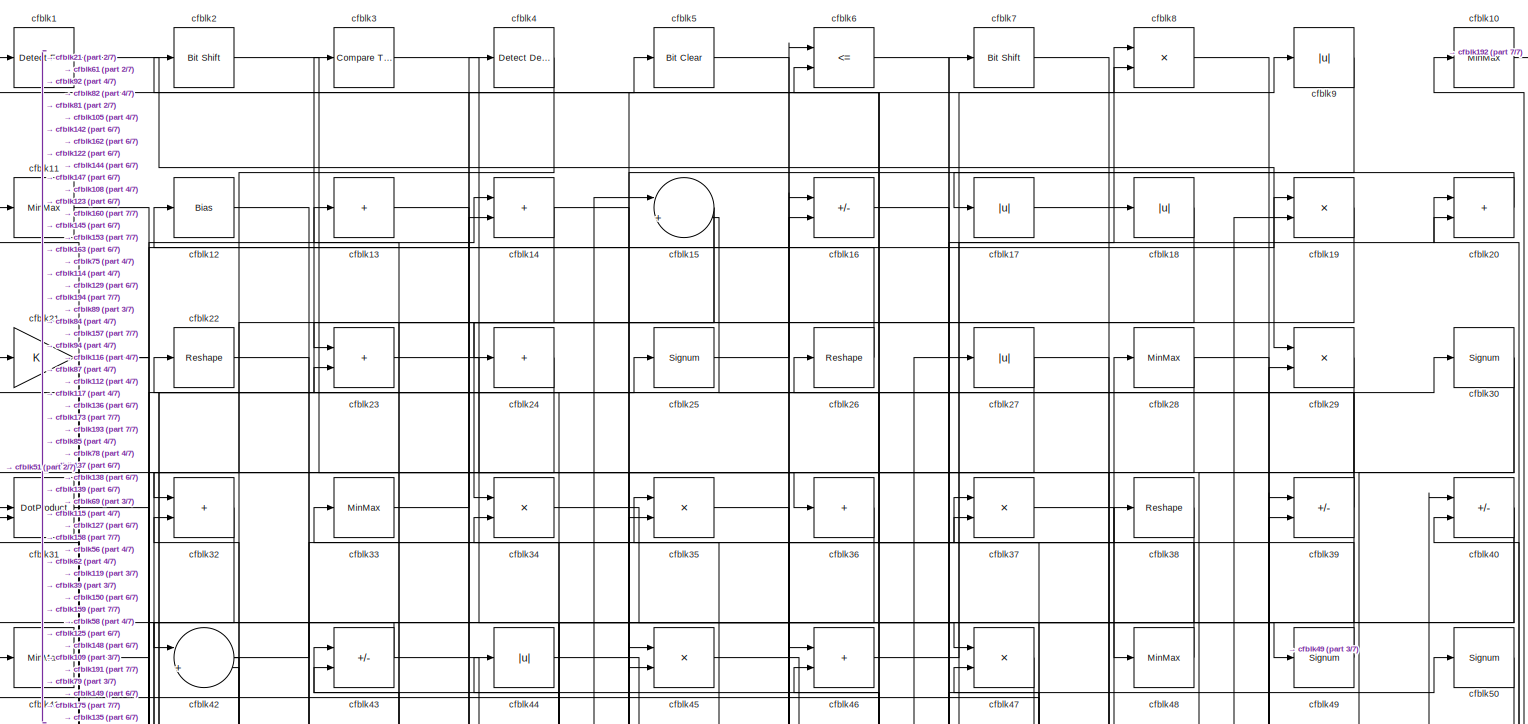
[diagram: root canvas - part 1/7, full width, top band]
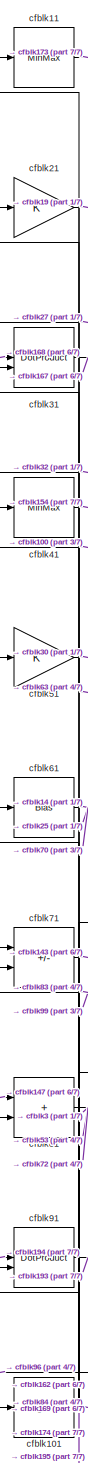
[diagram: root canvas - part 2/7, top left region]
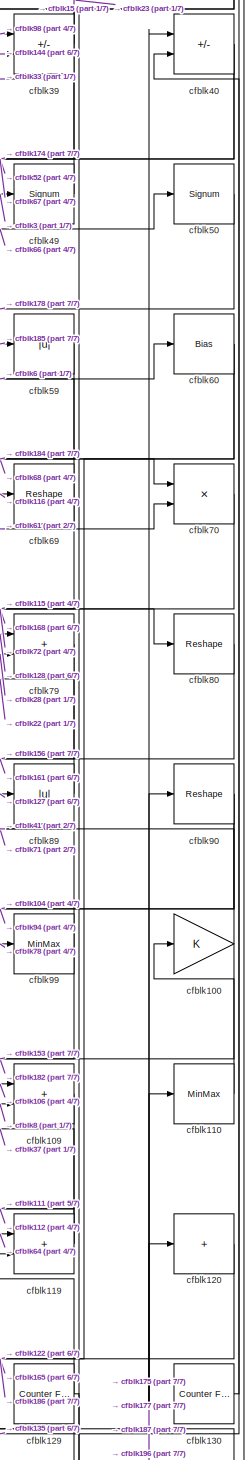
[diagram: root canvas - part 3/7, middle right region]
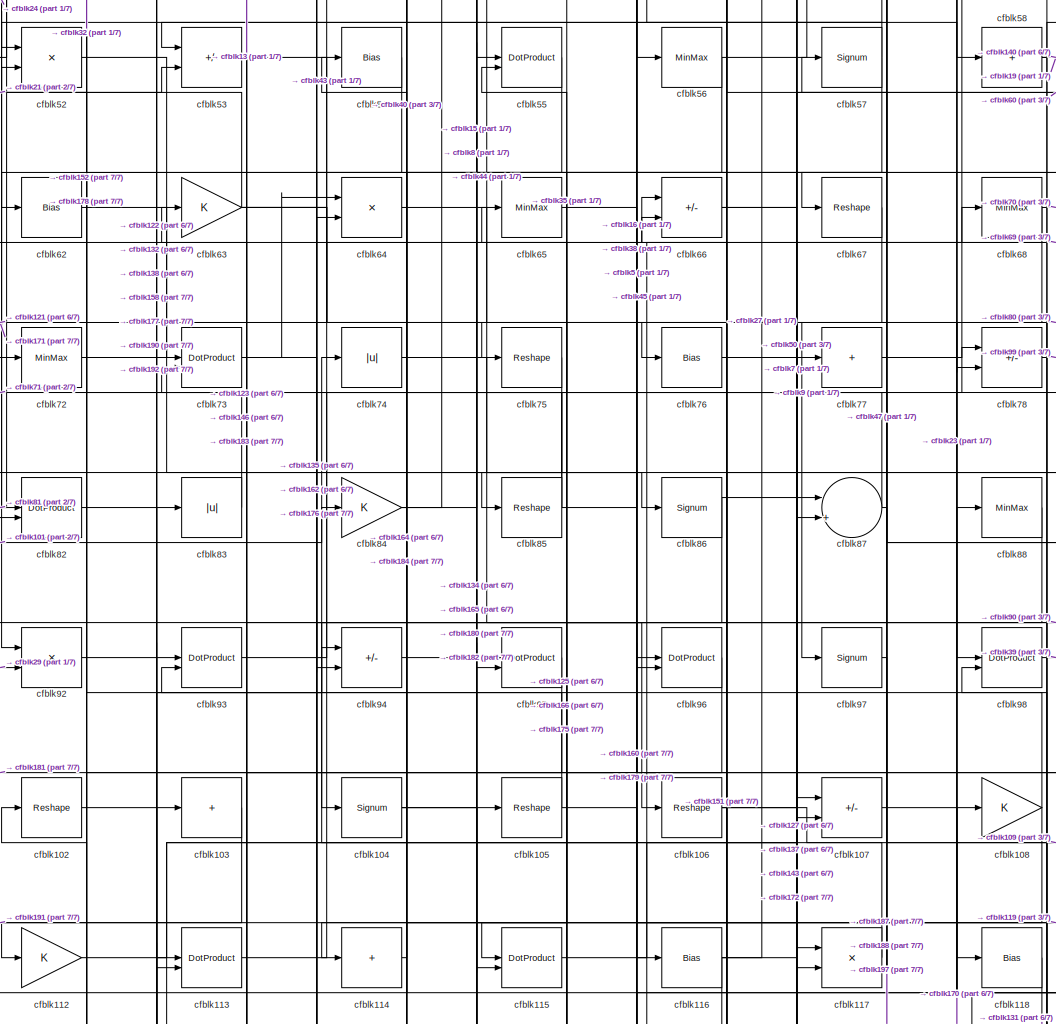
[diagram: root canvas - part 4/7, central region]
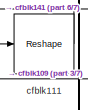
[diagram: root canvas - part 5/7, middle left region]
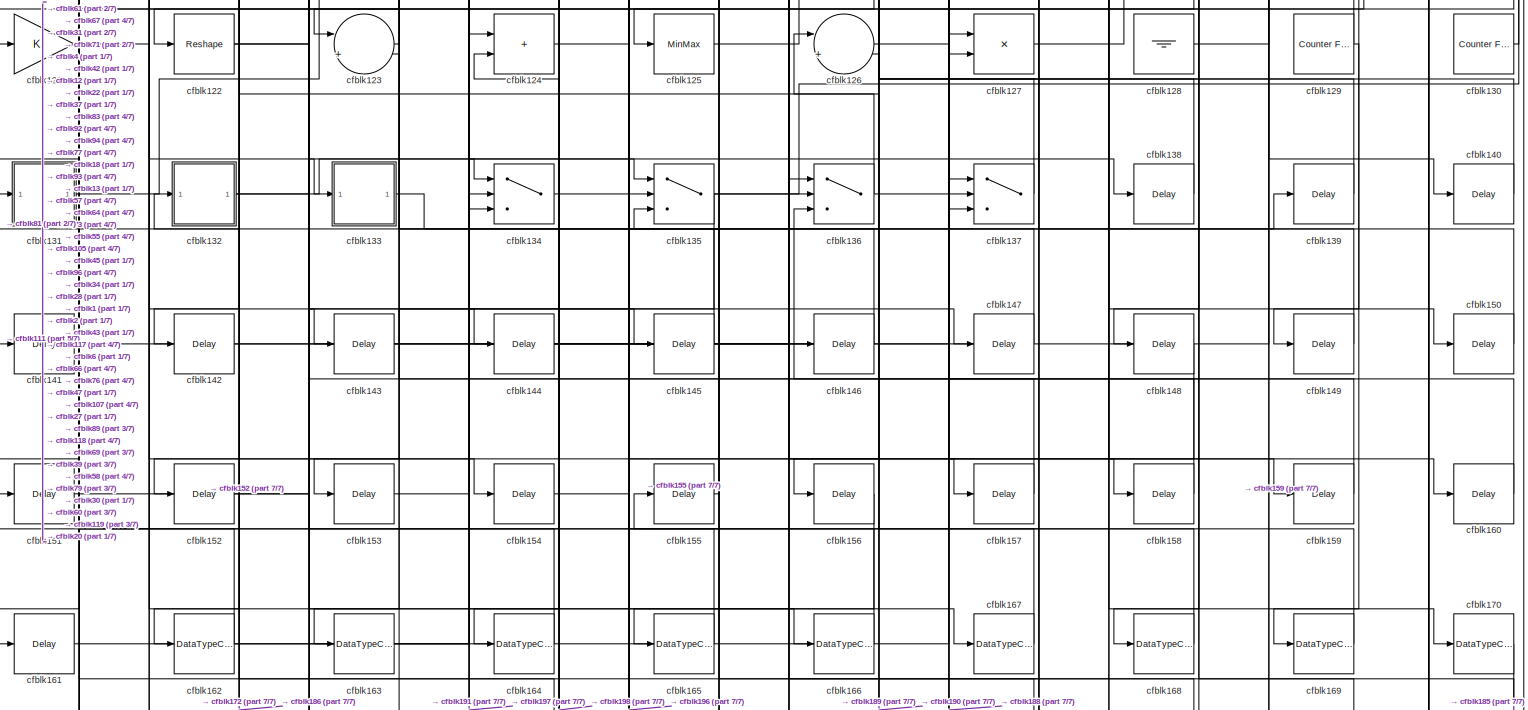
[diagram: root canvas - part 6/7, full width, bottom band]
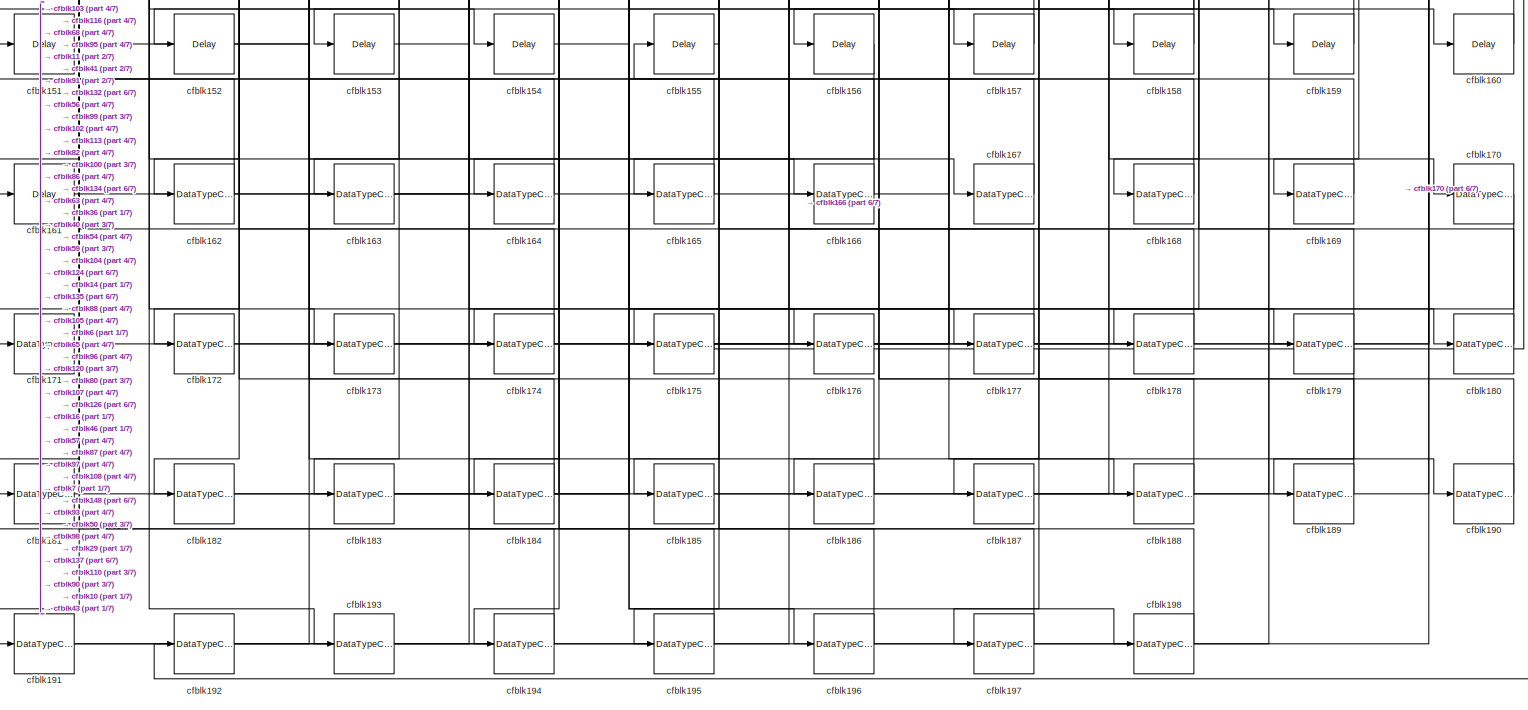
[diagram: root canvas - part 7/7, full width, bottom band]
MODEL slx_01ee4ed26ae1
KIND model
CONFIG AbsTol = auto
CONFIG EnableMultiTasking = off
CONFIG FixedStep = auto
CONFIG MaxStep = auto
CONFIG MinStep = auto
CONFIG RelTol = 1e-3
CONFIG SampleTimeConstraint = Unconstrained
CONFIG SolverName = VariableStepAuto
CONFIG StartTime = 0.0
CONFIG StopTime = 10.0
BLOCK [Reference] cfblk1  REF=hdlsllib/Logic and Bit
Operations/Detect Fall
Negative
  SourceBlock = hdlsllib/Logic and Bit\nOperations/Detect Fall\nNegative
  SourceType = Detect Fall Negative
BLOCK [MinMax] cfblk10
BLOCK [Gain] cfblk100
BLOCK [Signum] cfblk101
BLOCK [Reshape] cfblk102
BLOCK [Sum] cfblk103
  IconShape = rectangular
  Inputs = +
BLOCK [Signum] cfblk104
BLOCK [Reshape] cfblk105
BLOCK [Reshape] cfblk106
BLOCK [Sum] cfblk107
  IconShape = rectangular
  Inputs = +-
BLOCK [Gain] cfblk108
BLOCK [Sum] cfblk109
  IconShape = rectangular
BLOCK [MinMax] cfblk11
BLOCK [MinMax] cfblk110
BLOCK [Reshape] cfblk111
BLOCK [Gain] cfblk112
BLOCK [DotProduct] cfblk113
  OutDataTypeStr = Inherit: Inherit via internal rule
BLOCK [Sum] cfblk114
  IconShape = rectangular
  Inputs = +
BLOCK [DotProduct] cfblk115
  OutDataTypeStr = Inherit: Inherit via internal rule
BLOCK [Bias] cfblk116
  Bias = 0.0
  SaturateOnIntegerOverflow = off
BLOCK [Product] cfblk117
  Inputs = */
  RndMeth = Zero
  SaturateOnIntegerOverflow = on
BLOCK [Bias] cfblk118
  Bias = 0.0
  SaturateOnIntegerOverflow = off
BLOCK [Sum] cfblk119
  IconShape = rectangular
BLOCK [Bias] cfblk12
  Bias = 0.0
  SaturateOnIntegerOverflow = off
BLOCK [Sum] cfblk120
  IconShape = rectangular
  Inputs = +
BLOCK [Gain] cfblk121
BLOCK [Reshape] cfblk122
BLOCK [Sum] cfblk123
  Inputs = |++
BLOCK [Sum] cfblk124
  IconShape = rectangular
BLOCK [MinMax] cfblk125
BLOCK [Sum] cfblk126
  Inputs = |++
BLOCK [Product] cfblk127
  Inputs = */
  RndMeth = Zero
  SaturateOnIntegerOverflow = on
BLOCK [Ground] cfblk128
BLOCK [Reference] cfblk129  REF=hdlsllib/Sources/Counter
Free-Running
  SourceBlock = hdlsllib/Sources/Counter\nFree-Running
  SourceType = Counter Free-Running
BLOCK [Sum] cfblk13
  IconShape = rectangular
  Inputs = +
BLOCK [Reference] cfblk130  REF=hdlsllib/Sources/Counter
Free-Running
  SourceBlock = hdlsllib/Sources/Counter\nFree-Running
  SourceType = Counter Free-Running
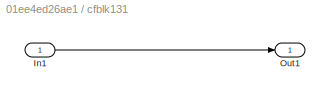
BLOCK [SubSystem] cfblk131
  LibrarySourceBlock = hdlsllib/Ports &\nSubsystems/Subsystem
BLOCK [Inport] cfblk131/In1
BLOCK [Outport] cfblk131/Out1
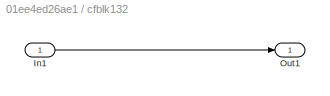
BLOCK [SubSystem] cfblk132
  LibrarySourceBlock = hdlsllib/Ports &\nSubsystems/Subsystem
BLOCK [Inport] cfblk132/In1
BLOCK [Outport] cfblk132/Out1
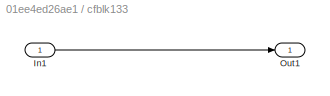
BLOCK [SubSystem] cfblk133
  LibrarySourceBlock = hdlsllib/Ports &\nSubsystems/Subsystem
BLOCK [Inport] cfblk133/In1
BLOCK [Outport] cfblk133/Out1
BLOCK [Switch] cfblk134
  InputSameDT = off
  SaturateOnIntegerOverflow = off
BLOCK [Switch] cfblk135
  InputSameDT = off
  SaturateOnIntegerOverflow = off
BLOCK [Switch] cfblk136
  InputSameDT = off
  SaturateOnIntegerOverflow = off
BLOCK [Switch] cfblk137
  InputSameDT = off
  SaturateOnIntegerOverflow = off
BLOCK [Delay] cfblk138
  InputPortMap = u0
  SampleTime = 1
BLOCK [Delay] cfblk139
  InputPortMap = u0
  SampleTime = 1
BLOCK [Sum] cfblk14
  IconShape = rectangular
BLOCK [Delay] cfblk140
  InputPortMap = u0
  SampleTime = 1
BLOCK [Delay] cfblk141
  InputPortMap = u0
  SampleTime = 1
BLOCK [Delay] cfblk142
  InputPortMap = u0
  SampleTime = 1
BLOCK [Delay] cfblk143
  InputPortMap = u0
  SampleTime = 1
BLOCK [Delay] cfblk144
  InputPortMap = u0
  SampleTime = 1
BLOCK [Delay] cfblk145
  InputPortMap = u0
  SampleTime = 1
BLOCK [Delay] cfblk146
  InputPortMap = u0
  SampleTime = 1
BLOCK [Delay] cfblk147
  InputPortMap = u0
  SampleTime = 1
BLOCK [Delay] cfblk148
  InputPortMap = u0
  SampleTime = 1
BLOCK [Delay] cfblk149
  InputPortMap = u0
  SampleTime = 1
BLOCK [Sum] cfblk15
  Inputs = |++
BLOCK [Delay] cfblk150
  InputPortMap = u0
  SampleTime = 1
BLOCK [Delay] cfblk151
  InputPortMap = u0
  SampleTime = 1
BLOCK [Delay] cfblk152
  InputPortMap = u0
  SampleTime = 1
BLOCK [Delay] cfblk153
  InputPortMap = u0
  SampleTime = 1
BLOCK [Delay] cfblk154
  InputPortMap = u0
  SampleTime = 1
BLOCK [Delay] cfblk155
  InputPortMap = u0
  SampleTime = 1
BLOCK [Delay] cfblk156
  InputPortMap = u0
  SampleTime = 1
BLOCK [Delay] cfblk157
  InputPortMap = u0
  SampleTime = 1
BLOCK [Delay] cfblk158
  InputPortMap = u0
  SampleTime = 1
BLOCK [Delay] cfblk159
  InputPortMap = u0
  SampleTime = 1
BLOCK [Sum] cfblk16
  IconShape = rectangular
  Inputs = +-
BLOCK [Delay] cfblk160
  InputPortMap = u0
  SampleTime = 1
BLOCK [Delay] cfblk161
  InputPortMap = u0
  SampleTime = 1
BLOCK [DataTypeConversion] cfblk162
  RndMeth = Floor
  SaturateOnIntegerOverflow = off
BLOCK [DataTypeConversion] cfblk163
  OutDataTypeStr = uint8
  RndMeth = Floor
  SaturateOnIntegerOverflow = off
BLOCK [DataTypeConversion] cfblk164
  OutDataTypeStr = uint8
  RndMeth = Floor
  SaturateOnIntegerOverflow = off
BLOCK [DataTypeConversion] cfblk165
  OutDataTypeStr = uint8
  RndMeth = Floor
  SaturateOnIntegerOverflow = off
BLOCK [DataTypeConversion] cfblk166
  OutDataTypeStr = uint8
  RndMeth = Floor
  SaturateOnIntegerOverflow = off
BLOCK [DataTypeConversion] cfblk167
  OutDataTypeStr = uint8
  RndMeth = Floor
  SaturateOnIntegerOverflow = off
BLOCK [DataTypeConversion] cfblk168
  OutDataTypeStr = uint8
  RndMeth = Floor
  SaturateOnIntegerOverflow = off
BLOCK [DataTypeConversion] cfblk169
  OutDataTypeStr = uint8
  RndMeth = Floor
  SaturateOnIntegerOverflow = off
BLOCK [Abs] cfblk17
  SaturateOnIntegerOverflow = off
BLOCK [DataTypeConversion] cfblk170
  OutDataTypeStr = uint8
  RndMeth = Floor
  SaturateOnIntegerOverflow = off
BLOCK [DataTypeConversion] cfblk171
  OutDataTypeStr = uint8
  RndMeth = Floor
  SaturateOnIntegerOverflow = off
BLOCK [DataTypeConversion] cfblk172
  OutDataTypeStr = uint8
  RndMeth = Floor
  SaturateOnIntegerOverflow = off
BLOCK [DataTypeConversion] cfblk173
  OutDataTypeStr = uint8
  RndMeth = Floor
  SaturateOnIntegerOverflow = off
BLOCK [DataTypeConversion] cfblk174
  OutDataTypeStr = uint8
  RndMeth = Floor
  SaturateOnIntegerOverflow = off
BLOCK [DataTypeConversion] cfblk175
  RndMeth = Floor
  SaturateOnIntegerOverflow = off
BLOCK [DataTypeConversion] cfblk176
  OutDataTypeStr = uint8
  RndMeth = Floor
  SaturateOnIntegerOverflow = off
BLOCK [DataTypeConversion] cfblk177
  RndMeth = Floor
  SaturateOnIntegerOverflow = off
BLOCK [DataTypeConversion] cfblk178
  OutDataTypeStr = uint8
  RndMeth = Floor
  SaturateOnIntegerOverflow = off
BLOCK [DataTypeConversion] cfblk179
  RndMeth = Floor
  SaturateOnIntegerOverflow = off
BLOCK [Abs] cfblk18
  SaturateOnIntegerOverflow = off
BLOCK [DataTypeConversion] cfblk180
  OutDataTypeStr = uint8
  RndMeth = Floor
  SaturateOnIntegerOverflow = off
BLOCK [DataTypeConversion] cfblk181
  OutDataTypeStr = uint8
  RndMeth = Floor
  SaturateOnIntegerOverflow = off
BLOCK [DataTypeConversion] cfblk182
  OutDataTypeStr = uint8
  RndMeth = Floor
  SaturateOnIntegerOverflow = off
BLOCK [DataTypeConversion] cfblk183
  OutDataTypeStr = uint8
  RndMeth = Floor
  SaturateOnIntegerOverflow = off
BLOCK [DataTypeConversion] cfblk184
  RndMeth = Floor
  SaturateOnIntegerOverflow = off
BLOCK [DataTypeConversion] cfblk185
  OutDataTypeStr = uint8
  RndMeth = Floor
  SaturateOnIntegerOverflow = off
BLOCK [DataTypeConversion] cfblk186
  OutDataTypeStr = uint8
  RndMeth = Floor
  SaturateOnIntegerOverflow = off
BLOCK [DataTypeConversion] cfblk187
  OutDataTypeStr = uint8
  RndMeth = Floor
  SaturateOnIntegerOverflow = off
BLOCK [DataTypeConversion] cfblk188
  OutDataTypeStr = uint8
  RndMeth = Floor
  SaturateOnIntegerOverflow = off
BLOCK [DataTypeConversion] cfblk189
  OutDataTypeStr = uint8
  RndMeth = Floor
  SaturateOnIntegerOverflow = off
BLOCK [Product] cfblk19
  Inputs = */
  RndMeth = Zero
  SaturateOnIntegerOverflow = on
BLOCK [DataTypeConversion] cfblk190
  OutDataTypeStr = uint8
  RndMeth = Floor
  SaturateOnIntegerOverflow = off
BLOCK [DataTypeConversion] cfblk191
  RndMeth = Floor
  SaturateOnIntegerOverflow = off
BLOCK [DataTypeConversion] cfblk192
  OutDataTypeStr = uint8
  RndMeth = Floor
  SaturateOnIntegerOverflow = off
BLOCK [DataTypeConversion] cfblk193
  OutDataTypeStr = uint8
  RndMeth = Floor
  SaturateOnIntegerOverflow = off
BLOCK [DataTypeConversion] cfblk194
  OutDataTypeStr = uint8
  RndMeth = Floor
  SaturateOnIntegerOverflow = off
BLOCK [DataTypeConversion] cfblk195
  OutDataTypeStr = uint8
  RndMeth = Floor
  SaturateOnIntegerOverflow = off
BLOCK [DataTypeConversion] cfblk196
  RndMeth = Floor
  SaturateOnIntegerOverflow = off
BLOCK [DataTypeConversion] cfblk197
  OutDataTypeStr = uint8
  RndMeth = Floor
  SaturateOnIntegerOverflow = off
BLOCK [DataTypeConversion] cfblk198
  OutDataTypeStr = uint8
  RndMeth = Floor
  SaturateOnIntegerOverflow = off
BLOCK [Reference] cfblk2  REF=hdlsllib/Logic and Bit
Operations/Bit Shift
  SourceBlock = hdlsllib/Logic and Bit\nOperations/Bit Shift
  SourceType = Bit Shift
BLOCK [Sum] cfblk20
  IconShape = rectangular
BLOCK [Gain] cfblk21
BLOCK [Reshape] cfblk22
BLOCK [Sum] cfblk23
  IconShape = rectangular
BLOCK [Sum] cfblk24
  IconShape = rectangular
  Inputs = +
BLOCK [Signum] cfblk25
BLOCK [Reshape] cfblk26
BLOCK [Abs] cfblk27
  SaturateOnIntegerOverflow = off
BLOCK [MinMax] cfblk28
BLOCK [Product] cfblk29
  Inputs = */
  RndMeth = Zero
  SaturateOnIntegerOverflow = on
BLOCK [Reference] cfblk3  REF=hdlsllib/Logic and Bit
Operations/Compare
To Zero
  SourceBlock = hdlsllib/Logic and Bit\nOperations/Compare\nTo Zero
  SourceType = Compare To Zero
BLOCK [Signum] cfblk30
BLOCK [DotProduct] cfblk31
  OutDataTypeStr = Inherit: Inherit via internal rule
BLOCK [Sum] cfblk32
  IconShape = rectangular
BLOCK [MinMax] cfblk33
BLOCK [Product] cfblk34
  Inputs = */
  RndMeth = Zero
  SaturateOnIntegerOverflow = on
BLOCK [Product] cfblk35
  Inputs = */
  RndMeth = Zero
  SaturateOnIntegerOverflow = on
BLOCK [Sum] cfblk36
  IconShape = rectangular
  Inputs = +
BLOCK [Product] cfblk37
  Inputs = */
  RndMeth = Zero
  SaturateOnIntegerOverflow = on
BLOCK [Reshape] cfblk38
BLOCK [Sum] cfblk39
  IconShape = rectangular
  Inputs = +-
BLOCK [Reference] cfblk4  REF=simulink/Logic and Bit
Operations/Detect
Decrease
  LibrarySourceBlock = hdlsllib/Logic and Bit\nOperations/Detect\nDecrease
  SourceBlock = simulink/Logic and Bit\nOperations/Detect\nDecrease
  SourceType = Detect Decrease
BLOCK [Sum] cfblk40
  IconShape = rectangular
  Inputs = +-
BLOCK [MinMax] cfblk41
BLOCK [Sum] cfblk42
  Inputs = |++
BLOCK [Sum] cfblk43
  IconShape = rectangular
  Inputs = +-
BLOCK [Abs] cfblk44
  SaturateOnIntegerOverflow = off
BLOCK [Product] cfblk45
  Inputs = */
  RndMeth = Zero
  SaturateOnIntegerOverflow = on
BLOCK [Sum] cfblk46
  IconShape = rectangular
BLOCK [Product] cfblk47
  Inputs = */
  RndMeth = Zero
  SaturateOnIntegerOverflow = on
BLOCK [MinMax] cfblk48
BLOCK [Signum] cfblk49
BLOCK [Reference] cfblk5  REF=simulink/Logic and Bit
Operations/Bit Clear
  LibrarySourceBlock = hdlsllib/Logic and Bit\nOperations/Bit Clear
  SourceBlock = simulink/Logic and Bit\nOperations/Bit Clear
  SourceType = Bit Clear
BLOCK [Signum] cfblk50
BLOCK [Gain] cfblk51
BLOCK [Product] cfblk52
  Inputs = */
  RndMeth = Zero
  SaturateOnIntegerOverflow = on
BLOCK [Sum] cfblk53
  IconShape = rectangular
  Inputs = +-
BLOCK [Bias] cfblk54
  Bias = 0.0
  SaturateOnIntegerOverflow = off
BLOCK [DotProduct] cfblk55
  OutDataTypeStr = Inherit: Inherit via internal rule
BLOCK [MinMax] cfblk56
BLOCK [Signum] cfblk57
BLOCK [Sum] cfblk58
  IconShape = rectangular
  Inputs = +
BLOCK [Abs] cfblk59
  SaturateOnIntegerOverflow = off
BLOCK [RelationalOperator] cfblk6
  InputSameDT = off
  Operator = <=
  OutDataTypeStr = boolean
BLOCK [Bias] cfblk60
  Bias = 0.0
  SaturateOnIntegerOverflow = off
BLOCK [Bias] cfblk61
  Bias = 0.0
  SaturateOnIntegerOverflow = off
BLOCK [Bias] cfblk62
  Bias = 0.0
  SaturateOnIntegerOverflow = off
BLOCK [Gain] cfblk63
BLOCK [Product] cfblk64
  Inputs = */
  RndMeth = Zero
  SaturateOnIntegerOverflow = on
BLOCK [MinMax] cfblk65
BLOCK [Sum] cfblk66
  IconShape = rectangular
  Inputs = +-
BLOCK [Reshape] cfblk67
BLOCK [MinMax] cfblk68
BLOCK [Reshape] cfblk69
BLOCK [Reference] cfblk7  REF=hdlsllib/Logic and Bit
Operations/Bit Shift
  SourceBlock = hdlsllib/Logic and Bit\nOperations/Bit Shift
  SourceType = Bit Shift
BLOCK [Product] cfblk70
  Inputs = */
  RndMeth = Zero
  SaturateOnIntegerOverflow = on
BLOCK [Sum] cfblk71
  IconShape = rectangular
  Inputs = +-
BLOCK [MinMax] cfblk72
BLOCK [DotProduct] cfblk73
  OutDataTypeStr = Inherit: Inherit via internal rule
BLOCK [Abs] cfblk74
  SaturateOnIntegerOverflow = off
BLOCK [Reshape] cfblk75
BLOCK [Bias] cfblk76
  Bias = 0.0
  SaturateOnIntegerOverflow = off
BLOCK [Sum] cfblk77
  IconShape = rectangular
  Inputs = +
BLOCK [Sum] cfblk78
  IconShape = rectangular
  Inputs = +-
BLOCK [Sum] cfblk79
  IconShape = rectangular
BLOCK [Product] cfblk8
  Inputs = */
  RndMeth = Zero
  SaturateOnIntegerOverflow = on
BLOCK [Reshape] cfblk80
BLOCK [Sum] cfblk81
  IconShape = rectangular
BLOCK [DotProduct] cfblk82
  OutDataTypeStr = Inherit: Inherit via internal rule
BLOCK [Abs] cfblk83
  SaturateOnIntegerOverflow = off
BLOCK [Gain] cfblk84
BLOCK [Reshape] cfblk85
BLOCK [Signum] cfblk86
BLOCK [Sum] cfblk87
  Inputs = |++
BLOCK [MinMax] cfblk88
BLOCK [Abs] cfblk89
  SaturateOnIntegerOverflow = off
BLOCK [Abs] cfblk9
  SaturateOnIntegerOverflow = off
BLOCK [Reshape] cfblk90
BLOCK [DotProduct] cfblk91
  OutDataTypeStr = Inherit: Inherit via internal rule
BLOCK [Product] cfblk92
  Inputs = */
  RndMeth = Zero
  SaturateOnIntegerOverflow = on
BLOCK [DotProduct] cfblk93
  OutDataTypeStr = Inherit: Inherit via internal rule
BLOCK [Sum] cfblk94
  IconShape = rectangular
  Inputs = +-
BLOCK [DotProduct] cfblk95
  OutDataTypeStr = Inherit: Inherit via internal rule
BLOCK [DotProduct] cfblk96
  OutDataTypeStr = Inherit: Inherit via internal rule
BLOCK [Signum] cfblk97
BLOCK [DotProduct] cfblk98
  OutDataTypeStr = Inherit: Inherit via internal rule
BLOCK [MinMax] cfblk99
NET cfblk100:1 -> cfblk153:1, cfblk41:1
LINE cfblk101:1 -> cfblk84:1
LINE cfblk102:1 -> cfblk177:1
LINE cfblk103:1 -> cfblk191:1
NET cfblk104:1 -> cfblk115:2, cfblk180:1
NET cfblk105:1 -> cfblk160:1, cfblk32:2
NET cfblk106:1 -> cfblk109:1, cfblk60:1
LINE cfblk107:1 -> cfblk170:1
NET cfblk108:1 -> cfblk114:1, cfblk13:1
LINE cfblk109:1 -> cfblk111:1
LINE cfblk10:1 -> cfblk192:1
LINE cfblk110:1 -> cfblk100:1
LINE cfblk111:1 -> cfblk141:1
LINE cfblk112:1 -> cfblk16:1
LINE cfblk113:1 -> cfblk66:1
LINE cfblk114:1 -> cfblk44:1
LINE cfblk115:1 -> cfblk7:1
NET cfblk116:1 -> cfblk151:1, cfblk27:1, cfblk69:1
LINE cfblk117:1 -> cfblk74:1
LINE cfblk118:1 -> cfblk131:1
NET cfblk119:1 -> cfblk112:1, cfblk37:2
LINE cfblk11:1 -> cfblk173:1
LINE cfblk120:1 -> cfblk186:1
LINE cfblk121:1 -> cfblk133:1
NET cfblk122:1 -> cfblk37:1, cfblk83:1
LINE cfblk123:1 -> cfblk93:2
LINE cfblk124:1 -> cfblk196:1
LINE cfblk125:1 -> cfblk28:1
LINE cfblk126:1 -> cfblk188:1
LINE cfblk127:1 -> cfblk89:1
LINE cfblk128:1 -> cfblk79:1
NET cfblk129:1 -> cfblk169:1, cfblk34:2
LINE cfblk12:1 -> cfblk144:1
LINE cfblk130:1 -> cfblk40:2
LINE cfblk131/In1:1 -> cfblk131/Out1:1
LINE cfblk131:1 -> cfblk77:1
LINE cfblk132/In1:1 -> cfblk132/Out1:1
NET cfblk132:1 -> cfblk134:1, cfblk94:1
LINE cfblk133/In1:1 -> cfblk133/Out1:1
LINE cfblk133:1 -> cfblk139:1
LINE cfblk134:1 -> cfblk105:1
NET cfblk135:1 -> cfblk119:2, cfblk163:1, cfblk20:1
NET cfblk136:1 -> cfblk20:2, cfblk42:2
LINE cfblk137:1 -> cfblk43:1
LINE cfblk138:1 -> cfblk1:1
LINE cfblk139:1 -> cfblk2:1
LINE cfblk13:1 -> cfblk145:1
LINE cfblk140:1 -> cfblk66:2
LINE cfblk141:1 -> cfblk136:1
LINE cfblk142:1 -> cfblk136:3
LINE cfblk143:1 -> cfblk117:1
LINE cfblk144:1 -> cfblk39:2
LINE cfblk145:1 -> cfblk45:1
LINE cfblk146:1 -> cfblk73:2
LINE cfblk147:1 -> cfblk81:1
LINE cfblk148:1 -> cfblk172:1
LINE cfblk149:1 -> cfblk123:2
NET cfblk14:1 -> cfblk157:1, cfblk32:1
LINE cfblk150:1 -> cfblk47:2
LINE cfblk151:1 -> cfblk113:2
LINE cfblk152:1 -> cfblk166:1
LINE cfblk153:1 -> cfblk14:2
LINE cfblk154:1 -> cfblk198:1
LINE cfblk155:1 -> cfblk135:3
LINE cfblk156:1 -> cfblk195:1
LINE cfblk157:1 -> cfblk46:2
LINE cfblk158:1 -> cfblk93:1
LINE cfblk159:1 -> cfblk137:1
NET cfblk15:1 -> cfblk23:1, cfblk24:1
LINE cfblk160:1 -> cfblk43:2
LINE cfblk161:1 -> cfblk137:3
NET cfblk162:1 -> cfblk61:1, cfblk64:2
LINE cfblk163:1 -> cfblk4:1
LINE cfblk164:1 -> cfblk73:1
LINE cfblk165:1 -> cfblk55:1
LINE cfblk166:1 -> cfblk55:2
LINE cfblk167:1 -> cfblk146:1
LINE cfblk168:1 -> cfblk31:1
LINE cfblk169:1 -> cfblk31:2
LINE cfblk16:1 -> cfblk158:1
LINE cfblk170:1 -> cfblk185:1
LINE cfblk171:1 -> cfblk107:1
LINE cfblk172:1 -> cfblk107:2
LINE cfblk173:1 -> cfblk6:1
LINE cfblk174:1 -> cfblk11:1
NET cfblk175:1 -> cfblk10:1, cfblk40:1
LINE cfblk176:1 -> cfblk88:1
NET cfblk177:1 -> cfblk90:1, cfblk96:1
LINE cfblk178:1 -> cfblk102:1
NET cfblk179:1 -> cfblk189:1, cfblk98:2
LINE cfblk17:1 -> cfblk8:2
LINE cfblk180:1 -> cfblk65:1
LINE cfblk181:1 -> cfblk108:1
LINE cfblk182:1 -> cfblk95:1
LINE cfblk183:1 -> cfblk95:2
NET cfblk184:1 -> cfblk113:1, cfblk54:1
LINE cfblk185:1 -> cfblk59:1
LINE cfblk186:1 -> cfblk132:1
LINE cfblk187:1 -> cfblk120:1
LINE cfblk188:1 -> cfblk57:1
LINE cfblk189:1 -> cfblk126:1
LINE cfblk18:1 -> cfblk123:1
LINE cfblk190:1 -> cfblk126:2
NET cfblk191:1 -> cfblk134:2, cfblk29:2
LINE cfblk192:1 -> cfblk103:1
LINE cfblk193:1 -> cfblk46:1
LINE cfblk194:1 -> cfblk91:1
LINE cfblk195:1 -> cfblk91:2
NET cfblk196:1 -> cfblk110:1, cfblk155:1
LINE cfblk197:1 -> cfblk124:1
LINE cfblk198:1 -> cfblk124:2
LINE cfblk19:1 -> cfblk34:1
LINE cfblk1:1 -> cfblk29:1
LINE cfblk20:1 -> cfblk17:1
NET cfblk21:1 -> cfblk101:1, cfblk19:1, cfblk96:2
LINE cfblk22:1 -> cfblk147:1
LINE cfblk23:1 -> cfblk58:1
LINE cfblk24:1 -> cfblk82:1
LINE cfblk25:1 -> cfblk16:2
LINE cfblk26:1 -> cfblk12:1
NET cfblk27:1 -> cfblk150:1, cfblk51:1
NET cfblk28:1 -> cfblk135:2, cfblk79:2
LINE cfblk29:1 -> cfblk92:2
LINE cfblk2:1 -> cfblk36:1
NET cfblk30:1 -> cfblk148:1, cfblk149:1
LINE cfblk31:1 -> cfblk167:1
LINE cfblk32:1 -> cfblk81:2
LINE cfblk33:1 -> cfblk5:1
LINE cfblk34:1 -> cfblk136:2
LINE cfblk35:1 -> cfblk117:2
LINE cfblk36:1 -> cfblk194:1
LINE cfblk37:1 -> cfblk48:1
LINE cfblk38:1 -> cfblk82:2
NET cfblk39:1 -> cfblk15:2, cfblk23:2, cfblk67:1
LINE cfblk3:1 -> cfblk49:1
NET cfblk40:1 -> cfblk174:1, cfblk52:1
LINE cfblk41:1 -> cfblk154:1
NET cfblk42:1 -> cfblk142:1, cfblk47:1
NET cfblk43:1 -> cfblk42:1, cfblk75:1
LINE cfblk44:1 -> cfblk116:1
LINE cfblk45:1 -> cfblk78:2
LINE cfblk46:1 -> cfblk18:1
LINE cfblk47:1 -> cfblk62:1
LINE cfblk48:1 -> cfblk26:1
LINE cfblk49:1 -> cfblk33:1
LINE cfblk4:1 -> cfblk162:1
LINE cfblk50:1 -> cfblk178:1
LINE cfblk51:1 -> cfblk30:1
LINE cfblk52:1 -> cfblk76:1
LINE cfblk53:1 -> cfblk97:1
LINE cfblk54:1 -> cfblk92:1
LINE cfblk55:1 -> cfblk164:1
NET cfblk56:1 -> cfblk152:1, cfblk9:1
NET cfblk57:1 -> cfblk134:3, cfblk53:1
NET cfblk58:1 -> cfblk140:1, cfblk19:2
LINE cfblk59:1 -> cfblk184:1
LINE cfblk5:1 -> cfblk56:1
NET cfblk60:1 -> cfblk122:1, cfblk165:1
NET cfblk61:1 -> cfblk14:1, cfblk25:1, cfblk70:2
LINE cfblk62:1 -> cfblk86:1
NET cfblk63:1 -> cfblk118:1, cfblk176:1, cfblk21:1, cfblk87:2, cfblk98:1
LINE cfblk64:1 -> cfblk119:1
LINE cfblk65:1 -> cfblk179:1
NET cfblk66:1 -> cfblk137:2, cfblk50:1
LINE cfblk67:1 -> cfblk121:1
NET cfblk68:1 -> cfblk171:1, cfblk70:1
NET cfblk69:1 -> cfblk168:1, cfblk6:2
LINE cfblk6:1 -> cfblk127:2
LINE cfblk70:1 -> cfblk115:1
LINE cfblk71:1 -> cfblk143:1
LINE cfblk72:1 -> cfblk80:1
NET cfblk73:1 -> cfblk135:1, cfblk64:1
LINE cfblk74:1 -> cfblk106:1
LINE cfblk75:1 -> cfblk85:1
LINE cfblk76:1 -> cfblk127:1
LINE cfblk77:1 -> cfblk78:1
LINE cfblk78:1 -> cfblk99:1
LINE cfblk79:1 -> cfblk161:1
LINE cfblk7:1 -> cfblk159:1
LINE cfblk80:1 -> cfblk156:1
NET cfblk81:1 -> cfblk3:1, cfblk53:2, cfblk72:1
LINE cfblk82:1 -> cfblk190:1
LINE cfblk83:1 -> cfblk71:1
NET cfblk84:1 -> cfblk15:1, cfblk35:2
NET cfblk85:1 -> cfblk38:1, cfblk52:2, cfblk63:1
NET cfblk86:1 -> cfblk183:1, cfblk87:1
NET cfblk87:1 -> cfblk187:1, cfblk35:1
LINE cfblk88:1 -> cfblk175:1
LINE cfblk89:1 -> cfblk22:1
LINE cfblk8:1 -> cfblk109:2
NET cfblk90:1 -> cfblk104:1, cfblk94:2
LINE cfblk91:1 -> cfblk193:1
LINE cfblk92:1 -> cfblk138:1
LINE cfblk93:1 -> cfblk68:1
LINE cfblk94:1 -> cfblk8:1
LINE cfblk95:1 -> cfblk181:1
LINE cfblk96:1 -> cfblk125:1
LINE cfblk97:1 -> cfblk197:1
LINE cfblk98:1 -> cfblk39:1
NET cfblk99:1 -> cfblk182:1, cfblk71:2
LINE cfblk9:1 -> cfblk45:2
note: NET lines group one-source signal fan-out (src -> all destinations, sorted); 1:1 wires keep LINE
